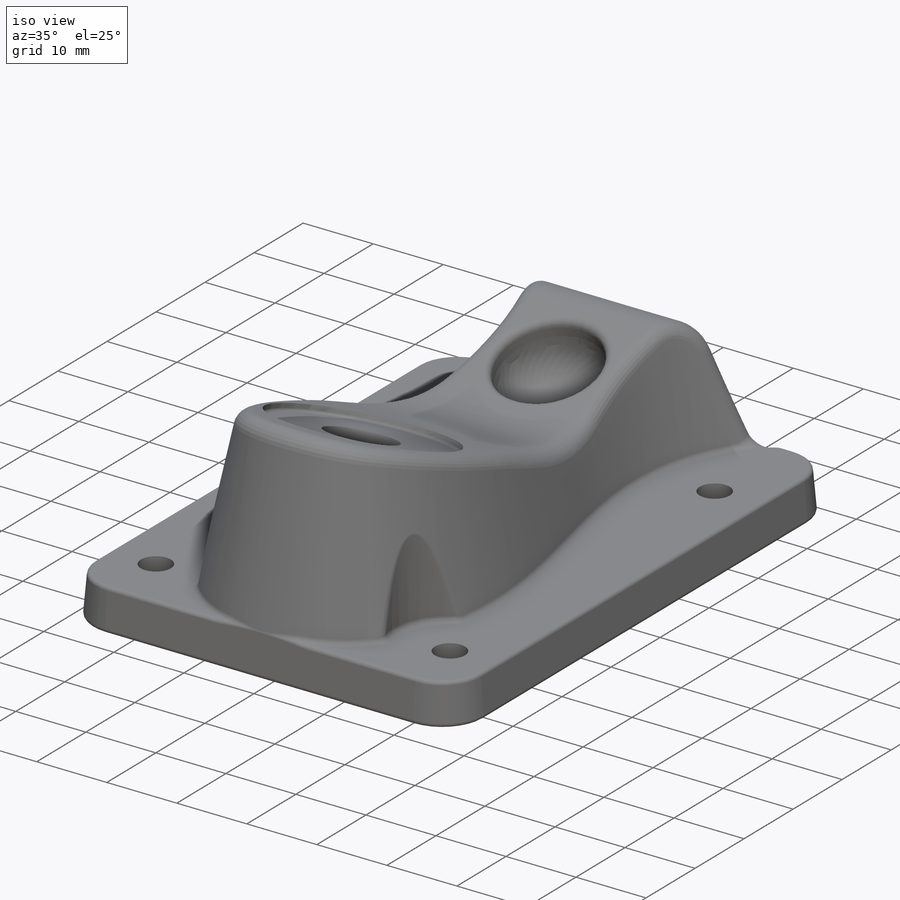
[diagram: iso view]
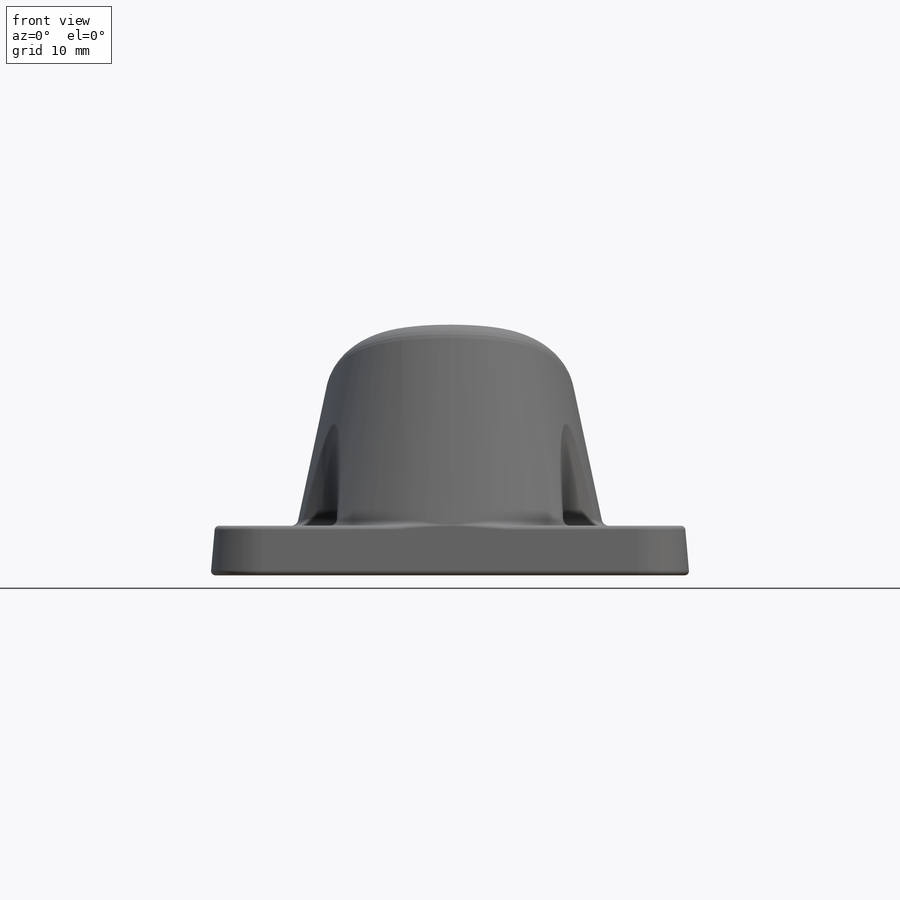
[diagram: front view]
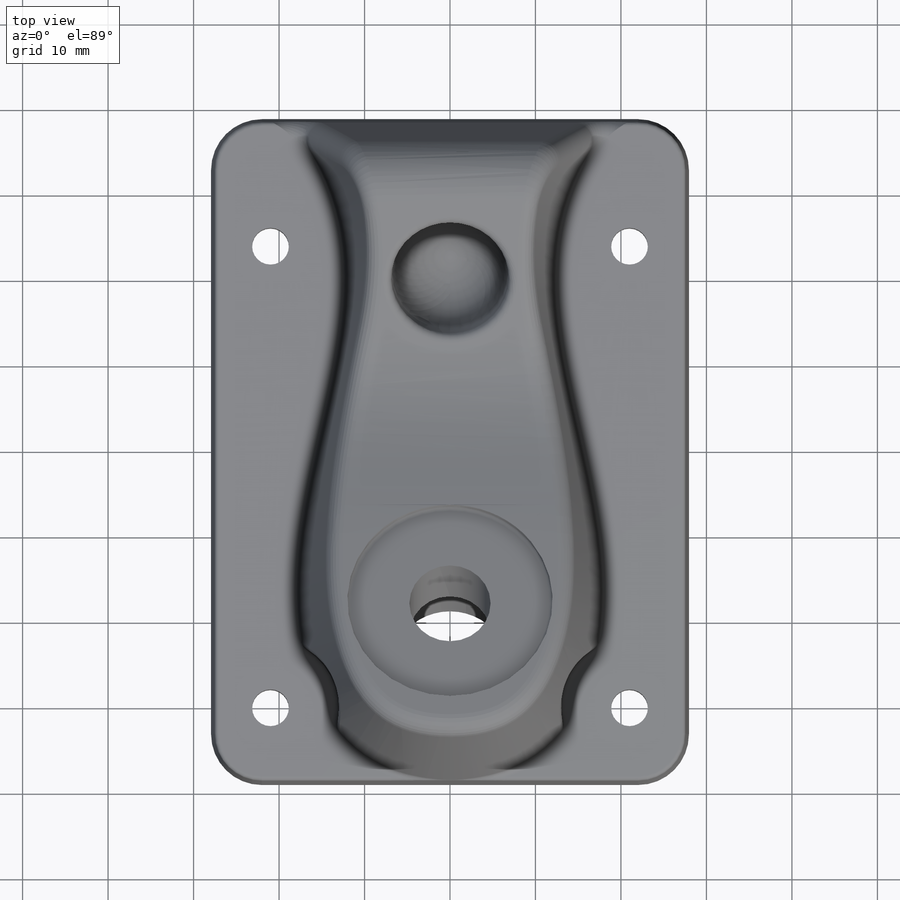
[diagram: top view]
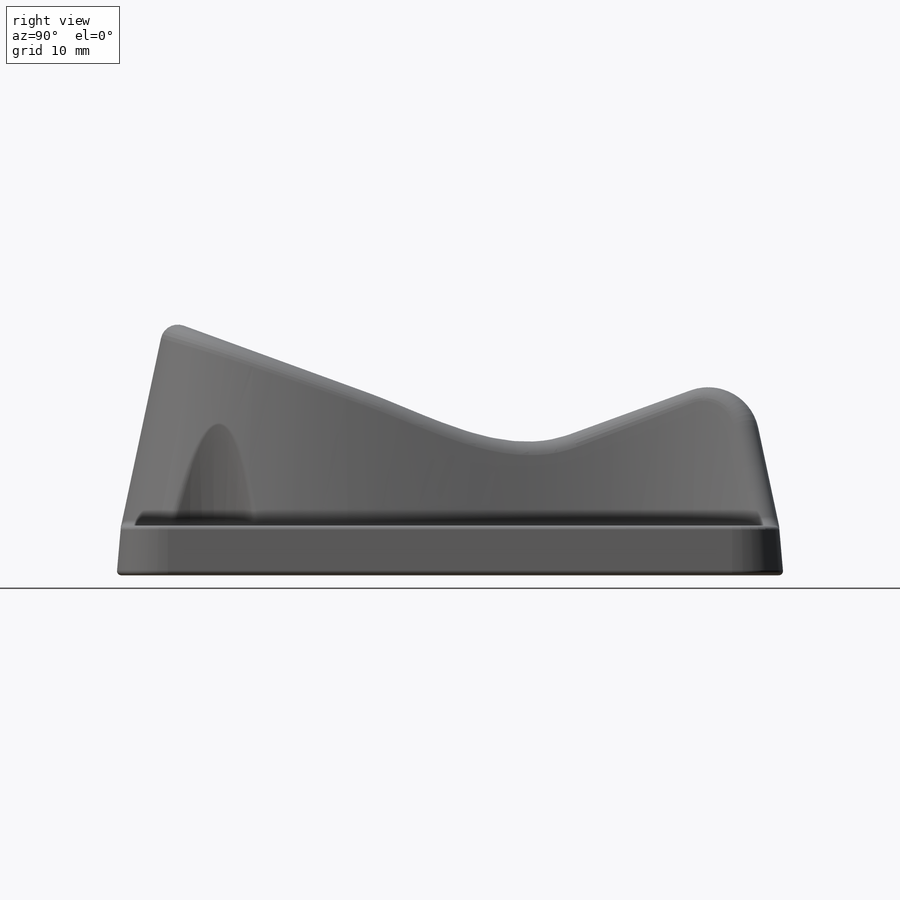
[diagram: right view]
SOLIDWORKS PART (.sldprt)
format: sldprt  version: not decoded by parser v0  size: 724,992 bytes
history: native  units: mm
features: sketch x11, fillet x8, cut_extrude x4, extrude x2, hole x2, plane x2, material x1 (+13 scaffold rows collapsed)
feature tree (43):
  scaffold x13  (default folders/planes/origin — collapsed)
  material  "Material <not specified>"
  sketch  "Sketch1"  dims[D3=6.0mm D1=56.0mm D2=78.0mm]
  extrude  "Boss-Extrude1"  Depth=5.8mm
  sketch  "Sketch2"  dims[D1=42.0mm D2=54.0mm D3=3.0mm]
  hole  "Ø4.3 (4.3) Diameter Hole1"  Diameter=4.3mm Depth=5.8mm
  sketch  "Sketch4"
  sketch  "Sketch3"  dims[hole-wizard template sketch: 60 standard entries collapsed; hole parameters kept: c18.Thru Hole Depth=5.8mm]
  sketch  "Sketch5"  dims[D1=15.3mm D2=16.5mm D3=15.0mm D4=38.0mm D5=10.0mm]
  extrude  "Boss-Extrude2"  Depth=25mm
  sketch  "Sketch6"  dims[c1.D1=25.0mm c1.D2=22.0mm c1.D3=24.0mm c1.D4=~19.881125mm c2.D4=20.0deg c2.D5=30.0mm c2.D6=~23.54324mm c3.D6=20.0deg c3.D1=25.0mm c3.D2=22.0mm c3.D3=~18.449768mm c4.D3=20.0deg c4.D4=~23.047192mm c5.D4=20.0deg c5.D5=24.0mm c5.D6=30.0mm]
  cut_extrude  "Cut-Extrude1"  [1 undecoded]
  sketch  "Sketch7"  dims[D1=16.0mm D2=16.0mm]
  cut_extrude  "Cut-Extrude2"  Depth=25mm
  plane  "Plane1"
  hole  "CBORE for #00 Binding Head Machine Screw2"  Diameter=9.5mm Depth=55.620127mm
  sketch  "Sketch12"  dims[D1=25.0mm]
  sketch  "Sketch11"  dims[hole-wizard template sketch: 41 standard entries collapsed; hole parameters kept: c12.Thru Hole Dia.=9.5mm c12.Thru Hole Depth=~55.620127mm c12.C'Bore Dia.=15.0mm c12.C'Bore Depth=19.0mm]
  plane  "Plane4"
  sketch  "Sketch17"  dims[D1=13.7mm D2=11.7mm]
  sketch  "Sketch19"  dims[D1=24.0mm]
  cut_extrude  "Cut-Extrude8"  Depth=1mm
  cut_extrude  "Cut-Extrude9"  Depth=11mm
  fillet  "Fillet10"  Radius=6mm
  fillet  "Fillet11"  Radius=1mm
  fillet  "Fillet12"  Radius=0.4mm
  fillet  "Fillet13"  Radius=0.8mm
  fillet  "Fillet14"  Radius=1mm
  fillet  "Fillet15"  Radius=0.8mm
  fillet  "Fillet16"  Radius=0.5mm
  fillet  "Fillet17"  Radius=2mm
decode coverage: 25 of 27 modeling features carry decoded parameters
note: ~ marks probable driven/reference dimensions
note: 1 parameter value undecoded
note: suppression state not decoded; provenance and decode notes live in map.json
